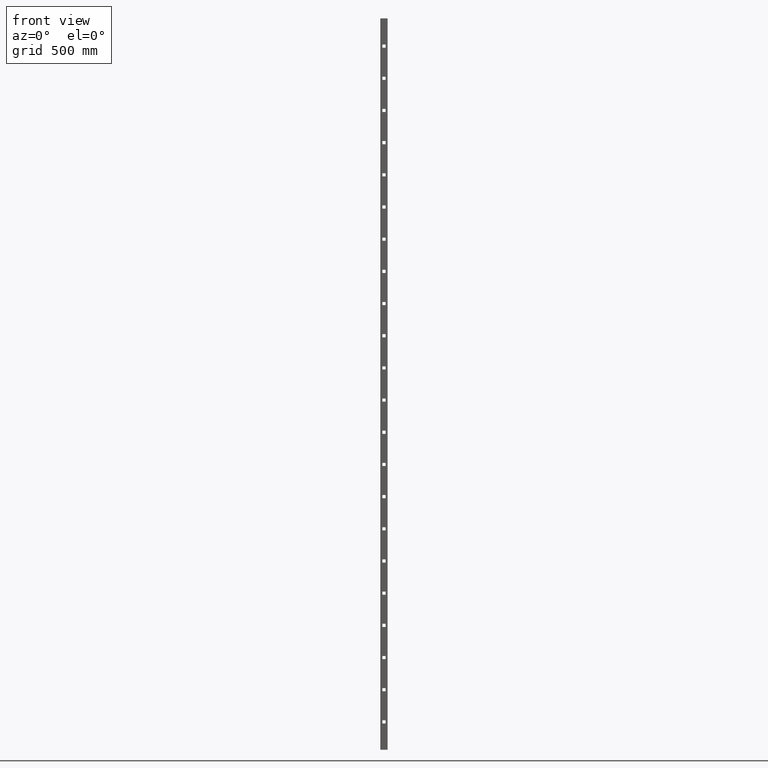
[diagram: clean part render]
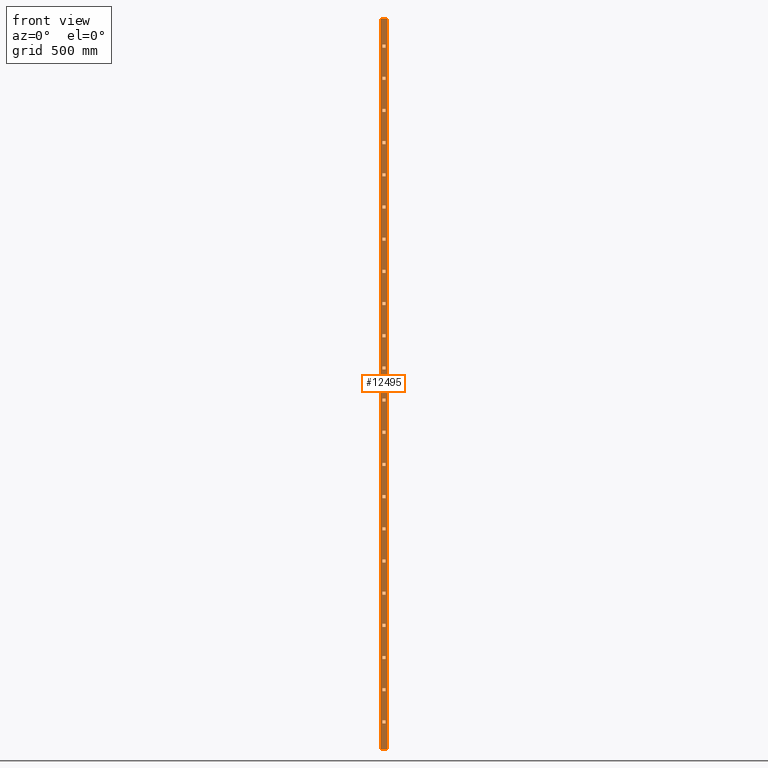
[diagram: same view with one face highlighted and labeled with its STEP entity id]
A machine part, front view. The second image highlights one B-rep face of the part: STEP entity #12495.
In plain terms, the highlighted planar face has unit normal (0, 1, 0).
Its self-contained STEP definition (entity closure, byte-faithful):
#4 = VECTOR ( 'NONE', #3863, 1000.000000000000000 ) ;
#28 = VECTOR ( 'NONE', #7644, 1000.000000000000000 ) ;
#47 = LINE ( 'NONE', #4747, #12181 ) ;
#49 = FACE_BOUND ( 'NONE', #16040, .T. ) ;
#58 = CARTESIAN_POINT ( 'NONE',  ( -6.499999999995550226, -10.00000000000000178, 1128.499999999999773 ) ) ;
#81 = EDGE_CURVE ( 'NONE', #14241, #19989, #8979, .T. ) ;
#96 = DIRECTION ( 'NONE',  ( -7.439294906592903578E-14, 0.000000000000000000, 1.000000000000000000 ) ) ;
#124 = ORIENTED_EDGE ( 'NONE', *, *, #81, .T. ) ;
#131 = ORIENTED_EDGE ( 'NONE', *, *, #16156, .T. ) ;
#146 = ORIENTED_EDGE ( 'NONE', *, *, #3233, .T. ) ;
#178 = DIRECTION ( 'NONE',  ( 1.000000000000000000, -0.000000000000000000, 0.000000000000000000 ) ) ;
#208 = VECTOR ( 'NONE', #18803, 1000.000000000000000 ) ;
#233 = VECTOR ( 'NONE', #20209, 1000.000000000000000 ) ;
#286 = LINE ( 'NONE', #13139, #11907 ) ;
#338 = CARTESIAN_POINT ( 'NONE',  ( 6.500000000004812151, -10.00000000000000178, 1260.500000000000000 ) ) ;
#350 = VERTEX_POINT ( 'NONE', #7926 ) ;
#365 = DIRECTION ( 'NONE',  ( 1.000000000000000000, -0.000000000000000000, 0.000000000000000000 ) ) ;
#407 = EDGE_CURVE ( 'NONE', #10597, #7128, #14400, .T. ) ;
#472 = CARTESIAN_POINT ( 'NONE',  ( 6.499999999989354293, -10.00000000000000178, -1392.500000000112095 ) ) ;
#487 = CARTESIAN_POINT ( 'NONE',  ( 6.500000000185815807, -10.00000000000000178, 1499.999999999998636 ) ) ;
#512 = CARTESIAN_POINT ( 'NONE',  ( 6.499999999996774136, -10.00000000000000178, 468.4999999999664055 ) ) ;
#519 = VERTEX_POINT ( 'NONE', #13598 ) ;
#527 = LINE ( 'NONE', #16030, #6981 ) ;
#547 = CARTESIAN_POINT ( 'NONE',  ( 6.499999999995390354, -10.00000000000000178, 72.49999999994938094 ) ) ;
#550 = VERTEX_POINT ( 'NONE', #16961 ) ;
#552 = DIRECTION ( 'NONE',  ( -1.000000000000000000, 0.000000000000000000, 0.000000000000000000 ) ) ;
#568 = LINE ( 'NONE', #1321, #3773 ) ;
#598 = CARTESIAN_POINT ( 'NONE',  ( -6.499999999997273292, -10.00000000000000178, 1500.000000000000000 ) ) ;
#636 = VERTEX_POINT ( 'NONE', #1667 ) ;
#643 = DIRECTION ( 'NONE',  ( -1.000000000000000000, 0.000000000000000000, 0.000000000000000000 ) ) ;
#701 = ORIENTED_EDGE ( 'NONE', *, *, #17012, .T. ) ;
#734 = CARTESIAN_POINT ( 'NONE',  ( -6.500000000121085364, -10.00000000000000178, 1500.000000000000455 ) ) ;
#738 = DIRECTION ( 'NONE',  ( -7.439294906592903578E-14, 0.000000000000000000, -1.000000000000000000 ) ) ;
#769 = FACE_BOUND ( 'NONE', #5850, .T. ) ;
#774 = EDGE_CURVE ( 'NONE', #5369, #7263, #5495, .T. ) ;
#808 = EDGE_CURVE ( 'NONE', #19989, #20088, #527, .T. ) ;
#833 = VERTEX_POINT ( 'NONE', #18122 ) ;
#839 = CARTESIAN_POINT ( 'NONE',  ( 11.99999999999998934, -9.999999999999998224, 1500.000000000000000 ) ) ;
#851 = VECTOR ( 'NONE', #13942, 1000.000000000000000 ) ;
#874 = DIRECTION ( 'NONE',  ( 1.334402673828323446E-16, -0.000000000000000000, 1.000000000000000000 ) ) ;
#880 = LINE ( 'NONE', #8807, #2863 ) ;
#888 = CARTESIAN_POINT ( 'NONE',  ( -12.00000000000001421, -10.00000000000000178, 732.4999999999997726 ) ) ;
#889 = ORIENTED_EDGE ( 'NONE', *, *, #3983, .T. ) ;
#938 = ORIENTED_EDGE ( 'NONE', *, *, #10245, .T. ) ;
#961 = EDGE_CURVE ( 'NONE', #519, #20193, #15372, .T. ) ;
#1021 = VECTOR ( 'NONE', #20056, 1000.000000000000000 ) ;
#1027 = CARTESIAN_POINT ( 'NONE',  ( -12.00000000000001421, -10.00000000000000178, 587.4999999999998863 ) ) ;
#1064 = LINE ( 'NONE', #3293, #3309 ) ;
#1066 = CARTESIAN_POINT ( 'NONE',  ( -6.500000000003180567, -10.00000000000000178, 191.4999999999551505 ) ) ;
#1090 = DIRECTION ( 'NONE',  ( 1.000000000000000000, -0.000000000000000000, 0.000000000000000000 ) ) ;
#1115 = ORIENTED_EDGE ( 'NONE', *, *, #12248, .T. ) ;
#1130 = DIRECTION ( 'NONE',  ( 1.000000000000000000, -0.000000000000000000, 0.000000000000000000 ) ) ;
#1153 = CARTESIAN_POINT ( 'NONE',  ( 11.99999999999998934, -9.999999999999998224, -1500.000000000000000 ) ) ;
#1156 = VERTEX_POINT ( 'NONE', #19408 ) ;
#1166 = CARTESIAN_POINT ( 'NONE',  ( 6.499999999989815258, -10.00000000000000178, -1260.500000000106866 ) ) ;
#1172 = DIRECTION ( 'NONE',  ( -1.000000000000000000, 0.000000000000000000, 0.000000000000000000 ) ) ;
#1190 = CARTESIAN_POINT ( 'NONE',  ( -6.499999999994630073, -10.00000000000000178, 1379.500000000000000 ) ) ;
#1193 = EDGE_CURVE ( 'NONE', #5348, #8339, #286, .T. ) ;
#1207 = EDGE_CURVE ( 'NONE', #636, #13223, #16631, .T. ) ;
#1245 = CARTESIAN_POINT ( 'NONE',  ( 6.499999999992580157, -10.00000000000000178, -468.5000000000727596 ) ) ;
#1259 = LINE ( 'NONE', #20078, #13398 ) ;
#1266 = CARTESIAN_POINT ( 'NONE',  ( 6.499999999995806910, -10.00000000000000178, 455.4999999999664624 ) ) ;
#1321 = CARTESIAN_POINT ( 'NONE',  ( -12.00000000000001421, -10.00000000000000178, -323.5000000000674163 ) ) ;
#1324 = LINE ( 'NONE', #17616, #15732 ) ;
#1348 = CARTESIAN_POINT ( 'NONE',  ( -6.500000000213612239, -10.00000000000000178, 1500.000000000000455 ) ) ;
#1370 = VECTOR ( 'NONE', #15465, 1000.000000000000000 ) ;
#1376 = LINE ( 'NONE', #3532, #17797 ) ;
#1397 = DIRECTION ( 'NONE',  ( -7.439294906592903578E-14, 0.000000000000000000, -1.000000000000000000 ) ) ;
#1538 = LINE ( 'NONE', #16006, #19411 ) ;
#1544 = CARTESIAN_POINT ( 'NONE',  ( 6.500000000110945031, -10.00000000000000178, 1499.999999999998636 ) ) ;
#1574 = CARTESIAN_POINT ( 'NONE',  ( -12.00000000000001421, -10.00000000000000178, 1247.500000000000000 ) ) ;
#1590 = DIRECTION ( 'NONE',  ( 1.000000000000000000, -0.000000000000000000, 0.000000000000000000 ) ) ;
#1591 = ORIENTED_EDGE ( 'NONE', *, *, #2769, .T. ) ;
#1631 = CARTESIAN_POINT ( 'NONE',  ( 6.500000000005286438, -10.00000000000000178, 1500.000000000000000 ) ) ;
#1645 = ORIENTED_EDGE ( 'NONE', *, *, #6984, .T. ) ;
#1667 = CARTESIAN_POINT ( 'NONE',  ( -6.500000000007328360, -10.00000000000000178, -996.5000000000951559 ) ) ;
#1695 = CARTESIAN_POINT ( 'NONE',  ( -6.500000000002258638, -10.00000000000000178, 455.4999999999664624 ) ) ;
#1732 = LINE ( 'NONE', #10159, #3912 ) ;
#1772 = CARTESIAN_POINT ( 'NONE',  ( -6.499999999996933120, -10.00000000000000178, 732.4999999999997726 ) ) ;
#1787 = FACE_BOUND ( 'NONE', #10370, .T. ) ;
#1808 = VECTOR ( 'NONE', #9726, 1000.000000000000000 ) ;
#1815 = EDGE_CURVE ( 'NONE', #6046, #14741, #7038, .T. ) ;
#1819 = CARTESIAN_POINT ( 'NONE',  ( -12.00000000000001421, -10.00000000000000178, -996.5000000000951559 ) ) ;
#1846 = EDGE_CURVE ( 'NONE', #16960, #833, #19665, .T. ) ;
#1850 = VECTOR ( 'NONE', #11111, 1000.000000000000000 ) ;
#1891 = EDGE_CURVE ( 'NONE', #5849, #18518, #19896, .T. ) ;
#1898 = DIRECTION ( 'NONE',  ( -1.334402673828323446E-16, 0.000000000000000000, -1.000000000000000000 ) ) ;
#1908 = VERTEX_POINT ( 'NONE', #1695 ) ;
#1951 = DIRECTION ( 'NONE',  ( 1.000000000000000000, 0.000000000000000000, 0.000000000000000000 ) ) ;
#1952 = VERTEX_POINT ( 'NONE', #15098 ) ;
#1982 = VECTOR ( 'NONE', #874, 1000.000000000000000 ) ;
#1986 = EDGE_LOOP ( 'NONE', ( #6837, #19167, #16666, #18106 ) ) ;
#2140 = ORIENTED_EDGE ( 'NONE', *, *, #15364, .T. ) ;
#2262 = FACE_BOUND ( 'NONE', #12992, .T. ) ;
#2292 = DIRECTION ( 'NONE',  ( 1.000000000000000000, -0.000000000000000000, 0.000000000000000000 ) ) ;
#2358 = ORIENTED_EDGE ( 'NONE', *, *, #15769, .T. ) ;
#2362 = VECTOR ( 'NONE', #18880, 1000.000000000000000 ) ;
#2370 = CARTESIAN_POINT ( 'NONE',  ( 6.500000000139023015, -10.00000000000000178, 1499.999999999998636 ) ) ;
#2466 = CARTESIAN_POINT ( 'NONE',  ( 6.499999999992625455, -10.00000000000000178, -719.5000000000841283 ) ) ;
#2475 = LINE ( 'NONE', #888, #14649 ) ;
#2489 = EDGE_CURVE ( 'NONE', #550, #10597, #9269, .T. ) ;
#2491 = CARTESIAN_POINT ( 'NONE',  ( 6.499999999990782484, -10.00000000000000178, -1247.500000000106866 ) ) ;
#2527 = CARTESIAN_POINT ( 'NONE',  ( 6.500000000002967404, -10.00000000000000178, 732.4999999999997726 ) ) ;
#2579 = PLANE ( 'NONE',  #12465 ) ;
#2582 = CARTESIAN_POINT ( 'NONE',  ( 6.500000000204536832, -10.00000000000000178, 1499.999999999998636 ) ) ;
#2583 = VERTEX_POINT ( 'NONE', #13819 ) ;
#2664 = VERTEX_POINT ( 'NONE', #20140 ) ;
#2668 = VECTOR ( 'NONE', #8320, 1000.000000000000000 ) ;
#2676 = EDGE_CURVE ( 'NONE', #4843, #3513, #8754, .T. ) ;
#2724 = EDGE_LOOP ( 'NONE', ( #14763, #9585, #10045, #14726 ) ) ;
#2740 = FACE_BOUND ( 'NONE', #4753, .T. ) ;
#2769 = EDGE_CURVE ( 'NONE', #16162, #5849, #7533, .T. ) ;
#2790 = CARTESIAN_POINT ( 'NONE',  ( 6.499999999991704414, -10.00000000000000178, -983.5000000000954969 ) ) ;
#2795 = EDGE_CURVE ( 'NONE', #10769, #19556, #10257, .T. ) ;
#2818 = VERTEX_POINT ( 'NONE', #6196 ) ;
#2830 = VECTOR ( 'NONE', #16767, 1000.000000000000000 ) ;
#2863 = VECTOR ( 'NONE', #20091, 1000.000000000000000 ) ;
#2916 = VECTOR ( 'NONE', #1172, 1000.000000000000000 ) ;
#2928 = CARTESIAN_POINT ( 'NONE',  ( -6.500000000004562573, -10.00000000000000178, -204.5000000000616183 ) ) ;
#3017 = ORIENTED_EDGE ( 'NONE', *, *, #3649, .T. ) ;
#3018 = DIRECTION ( 'NONE',  ( -1.000000000000000000, 0.000000000000000000, 0.000000000000000000 ) ) ;
#3035 = LINE ( 'NONE', #13717, #20409 ) ;
#3052 = CARTESIAN_POINT ( 'NONE',  ( 6.499999999994423128, -10.00000000000000178, 59.49999999994948041 ) ) ;
#3057 = CARTESIAN_POINT ( 'NONE',  ( -6.500000000162208025, -10.00000000000000178, 1500.000000000000455 ) ) ;
#3102 = ORIENTED_EDGE ( 'NONE', *, *, #10043, .T. ) ;
#3122 = LINE ( 'NONE', #6118, #17567 ) ;
#3158 = CARTESIAN_POINT ( 'NONE',  ( 6.499999999994469313, -10.00000000000000178, -191.5000000000617320 ) ) ;
#3162 = LINE ( 'NONE', #17276, #16554 ) ;
#3183 = EDGE_CURVE ( 'NONE', #11286, #11969, #18434, .T. ) ;
#3205 = VECTOR ( 'NONE', #552, 1000.000000000000000 ) ;
#3233 = EDGE_CURVE ( 'NONE', #5688, #5348, #18675, .T. ) ;
#3234 = CARTESIAN_POINT ( 'NONE',  ( 6.500000000002505551, -10.00000000000000178, 587.4999999999998863 ) ) ;
#3293 = CARTESIAN_POINT ( 'NONE',  ( -12.00000000000001421, -10.00000000000000178, 1379.500000000000000 ) ) ;
#3309 = VECTOR ( 'NONE', #16125, 1000.000000000000000 ) ;
#3337 = VERTEX_POINT ( 'NONE', #3234 ) ;
#3400 = LINE ( 'NONE', #8272, #15779 ) ;
#3407 = VERTEX_POINT ( 'NONE', #472 ) ;
#3422 = EDGE_CURVE ( 'NONE', #2818, #19477, #20377, .T. ) ;
#3463 = DIRECTION ( 'NONE',  ( 1.334402673828323446E-16, -0.000000000000000000, 1.000000000000000000 ) ) ;
#3509 = CARTESIAN_POINT ( 'NONE',  ( 6.500000000003888445, -10.00000000000000178, 983.4999999999998863 ) ) ;
#3513 = VERTEX_POINT ( 'NONE', #8653 ) ;
#3532 = CARTESIAN_POINT ( 'NONE',  ( -12.00000000000001421, -10.00000000000000178, -1128.500000000101181 ) ) ;
#3549 = VECTOR ( 'NONE', #1397, 1000.000000000000000 ) ;
#3608 = CARTESIAN_POINT ( 'NONE',  ( -12.00000000000001421, -10.00000000000000178, 204.4999999999550369 ) ) ;
#3649 = EDGE_CURVE ( 'NONE', #1908, #20396, #47, .T. ) ;
#3673 = CARTESIAN_POINT ( 'NONE',  ( -6.500000000005024425, -10.00000000000000178, -336.5000000000673026 ) ) ;
#3677 = CARTESIAN_POINT ( 'NONE',  ( -6.500000000006912693, -10.00000000000000178, -587.5000000000785576 ) ) ;
#3682 = EDGE_CURVE ( 'NONE', #15442, #6046, #14670, .T. ) ;
#3705 = ORIENTED_EDGE ( 'NONE', *, *, #8684, .T. ) ;
#3735 = CARTESIAN_POINT ( 'NONE',  ( -6.499999999994613198, -10.00000000000000178, 1500.000000000000000 ) ) ;
#3743 = CARTESIAN_POINT ( 'NONE',  ( 6.499999999993086419, -10.00000000000000178, -587.5000000000785576 ) ) ;
#3752 = FACE_BOUND ( 'NONE', #8275, .T. ) ;
#3765 = ORIENTED_EDGE ( 'NONE', *, *, #12600, .T. ) ;
#3773 = VECTOR ( 'NONE', #14053, 1000.000000000000000 ) ;
#3823 = ORIENTED_EDGE ( 'NONE', *, *, #8825, .T. ) ;
#3863 = DIRECTION ( 'NONE',  ( 1.000000000000000000, 0.000000000000000000, 0.000000000000000000 ) ) ;
#3912 = VECTOR ( 'NONE', #643, 1000.000000000000000 ) ;
#3931 = DIRECTION ( 'NONE',  ( 1.000000000000000000, -0.000000000000000000, 0.000000000000000000 ) ) ;
#3940 = DIRECTION ( 'NONE',  ( 1.000000000000000000, -0.000000000000000000, 0.000000000000000000 ) ) ;
#3951 = CARTESIAN_POINT ( 'NONE',  ( 6.499999999995852207, -10.00000000000000178, 204.4999999999550369 ) ) ;
#3964 = CARTESIAN_POINT ( 'NONE',  ( -6.499999999996934008, -10.00000000000000178, 719.4999999999998863 ) ) ;
#3983 = EDGE_CURVE ( 'NONE', #7605, #7045, #2475, .T. ) ;
#4015 = VERTEX_POINT ( 'NONE', #5680 ) ;
#4046 = DIRECTION ( 'NONE',  ( -1.000000000000000000, 0.000000000000000000, 0.000000000000000000 ) ) ;
#4060 = CARTESIAN_POINT ( 'NONE',  ( -12.00000000000001421, -10.00000000000000178, 1500.000000000000000 ) ) ;
#4094 = LINE ( 'NONE', #19940, #2830 ) ;
#4147 = ORIENTED_EDGE ( 'NONE', *, *, #6855, .T. ) ;
#4172 = VECTOR ( 'NONE', #4273, 1000.000000000000000 ) ;
#4184 = EDGE_CURVE ( 'NONE', #18810, #5551, #1259, .T. ) ;
#4213 = LINE ( 'NONE', #6023, #4 ) ;
#4255 = CARTESIAN_POINT ( 'NONE',  ( -6.500000000203330686, -10.00000000000000178, 1500.000000000000455 ) ) ;
#4261 = VERTEX_POINT ( 'NONE', #19585 ) ;
#4267 = EDGE_CURVE ( 'NONE', #4261, #12627, #17910, .T. ) ;
#4273 = DIRECTION ( 'NONE',  ( -1.000000000000000000, 0.000000000000000000, 0.000000000000000000 ) ) ;
#4336 = DIRECTION ( 'NONE',  ( -7.439294906592903578E-14, 0.000000000000000000, 1.000000000000000000 ) ) ;
#4370 = CARTESIAN_POINT ( 'NONE',  ( -6.499999999994628297, -10.00000000000000178, 1392.499999999999773 ) ) ;
#4373 = ORIENTED_EDGE ( 'NONE', *, *, #2795, .T. ) ;
#4395 = LINE ( 'NONE', #9438, #208 ) ;
#4407 = LINE ( 'NONE', #5567, #8168 ) ;
#4458 = ORIENTED_EDGE ( 'NONE', *, *, #20451, .T. ) ;
#4462 = DIRECTION ( 'NONE',  ( -7.439294906592903578E-14, 0.000000000000000000, 1.000000000000000000 ) ) ;
#4504 = VECTOR ( 'NONE', #9686, 1000.000000000000000 ) ;
#4532 = CARTESIAN_POINT ( 'NONE',  ( -6.500000000008756551, -10.00000000000000178, -1115.500000000100954 ) ) ;
#4569 = CARTESIAN_POINT ( 'NONE',  ( -12.00000000000001421, -10.00000000000000178, 1260.500000000000000 ) ) ;
#4631 = CARTESIAN_POINT ( 'NONE',  ( -12.00000000000001421, -10.00000000000000178, -983.5000000000952696 ) ) ;
#4645 = VERTEX_POINT ( 'NONE', #9141 ) ;
#4679 = EDGE_CURVE ( 'NONE', #19556, #13965, #7206, .T. ) ;
#4747 = CARTESIAN_POINT ( 'NONE',  ( -6.500000000079961815, -10.00000000000000178, 1500.000000000000455 ) ) ;
#4753 = EDGE_LOOP ( 'NONE', ( #10008, #16238, #4458, #11686 ) ) ;
#4762 = LINE ( 'NONE', #4255, #1021 ) ;
#4772 = DIRECTION ( 'NONE',  ( -7.439294906592903578E-14, 0.000000000000000000, -1.000000000000000000 ) ) ;
#4843 = VERTEX_POINT ( 'NONE', #7456 ) ;
#4857 = ORIENTED_EDGE ( 'NONE', *, *, #4872, .T. ) ;
#4862 = LINE ( 'NONE', #14585, #11298 ) ;
#4872 = EDGE_CURVE ( 'NONE', #7686, #10355, #12888, .T. ) ;
#4874 = CARTESIAN_POINT ( 'NONE',  ( -6.500000000182769355, -10.00000000000000178, 1500.000000000000455 ) ) ;
#4882 = VERTEX_POINT ( 'NONE', #12345 ) ;
#4935 = CARTESIAN_POINT ( 'NONE',  ( -6.499999999996386002, -10.00000000000000178, 1500.000000000000000 ) ) ;
#4938 = LINE ( 'NONE', #9121, #6435 ) ;
#4956 = DIRECTION ( 'NONE',  ( 1.000000000000000000, -0.000000000000000000, 0.000000000000000000 ) ) ;
#5014 = FACE_BOUND ( 'NONE', #18533, .T. ) ;
#5027 = VERTEX_POINT ( 'NONE', #14502 ) ;
#5078 = LINE ( 'NONE', #3735, #13440 ) ;
#5101 = VECTOR ( 'NONE', #7460, 1000.000000000000000 ) ;
#5139 = VECTOR ( 'NONE', #11309, 1000.000000000000000 ) ;
#5149 = DIRECTION ( 'NONE',  ( -1.000000000000000000, 0.000000000000000000, 0.000000000000000000 ) ) ;
#5222 = VERTEX_POINT ( 'NONE', #17638 ) ;
#5348 = VERTEX_POINT ( 'NONE', #547 ) ;
#5368 = LINE ( 'NONE', #18512, #11778 ) ;
#5369 = VERTEX_POINT ( 'NONE', #7138 ) ;
#5463 = ORIENTED_EDGE ( 'NONE', *, *, #10626, .T. ) ;
#5495 = LINE ( 'NONE', #12757, #7478 ) ;
#5503 = CARTESIAN_POINT ( 'NONE',  ( 6.500000000005270451, -10.00000000000000178, 1379.500000000000000 ) ) ;
#5530 = VERTEX_POINT ( 'NONE', #14830 ) ;
#5551 = VERTEX_POINT ( 'NONE', #19749 ) ;
#5559 = VECTOR ( 'NONE', #10219, 1000.000000000000000 ) ;
#5567 = CARTESIAN_POINT ( 'NONE',  ( 6.500000000003069545, -10.00000000000000178, 1500.000000000000000 ) ) ;
#5616 = EDGE_CURVE ( 'NONE', #7376, #11286, #9422, .T. ) ;
#5638 = CARTESIAN_POINT ( 'NONE',  ( -6.500000000006867396, -10.00000000000000178, -864.5000000000893579 ) ) ;
#5643 = VERTEX_POINT ( 'NONE', #15437 ) ;
#5680 = CARTESIAN_POINT ( 'NONE',  ( 6.500000000003427481, -10.00000000000000178, 851.4999999999998863 ) ) ;
#5688 = VERTEX_POINT ( 'NONE', #15792 ) ;
#5704 = CARTESIAN_POINT ( 'NONE',  ( -6.500000000002719602, -10.00000000000000178, 323.4999999999608349 ) ) ;
#5711 = EDGE_CURVE ( 'NONE', #5551, #13843, #16830, .T. ) ;
#5740 = VERTEX_POINT ( 'NONE', #14416 ) ;
#5761 = ORIENTED_EDGE ( 'NONE', *, *, #14544, .T. ) ;
#5796 = VECTOR ( 'NONE', #178, 1000.000000000000000 ) ;
#5809 = ORIENTED_EDGE ( 'NONE', *, *, #14776, .T. ) ;
#5817 = VECTOR ( 'NONE', #1590, 1000.000000000000000 ) ;
#5849 = VERTEX_POINT ( 'NONE', #3677 ) ;
#5850 = EDGE_LOOP ( 'NONE', ( #3705, #12505, #7063, #19510 ) ) ;
#5864 = LINE ( 'NONE', #19296, #10102 ) ;
#5874 = EDGE_CURVE ( 'NONE', #17438, #3337, #13105, .T. ) ;
#5906 = VECTOR ( 'NONE', #17845, 1000.000000000000000 ) ;
#5934 = ORIENTED_EDGE ( 'NONE', *, *, #2489, .T. ) ;
#5938 = VECTOR ( 'NONE', #16026, 1000.000000000000000 ) ;
#5964 = ORIENTED_EDGE ( 'NONE', *, *, #1846, .T. ) ;
#5974 = VECTOR ( 'NONE', #14480, 1000.000000000000000 ) ;
#5994 = FACE_BOUND ( 'NONE', #14708, .T. ) ;
#5996 = CARTESIAN_POINT ( 'NONE',  ( 6.499999999991198152, -10.00000000000000178, -864.5000000000895852 ) ) ;
#6015 = FACE_BOUND ( 'NONE', #1986, .T. ) ;
#6023 = CARTESIAN_POINT ( 'NONE',  ( -12.00000000000001421, -10.00000000000000178, 1500.000000000000000 ) ) ;
#6041 = CARTESIAN_POINT ( 'NONE',  ( -12.00000000000001421, -10.00000000000000178, 455.4999999999664624 ) ) ;
#6046 = VERTEX_POINT ( 'NONE', #3673 ) ;
#6067 = DIRECTION ( 'NONE',  ( 1.000000000000000000, -0.000000000000000000, 0.000000000000000000 ) ) ;
#6091 = ORIENTED_EDGE ( 'NONE', *, *, #18896, .T. ) ;
#6103 = ORIENTED_EDGE ( 'NONE', *, *, #11816, .T. ) ;
#6107 = VERTEX_POINT ( 'NONE', #19138 ) ;
#6118 = CARTESIAN_POINT ( 'NONE',  ( 6.500000000092227559, -10.00000000000000178, 1499.999999999998636 ) ) ;
#6123 = LINE ( 'NONE', #1819, #12808 ) ;
#6158 = LINE ( 'NONE', #10633, #14839 ) ;
#6169 = EDGE_CURVE ( 'NONE', #3513, #16527, #6158, .T. ) ;
#6183 = CARTESIAN_POINT ( 'NONE',  ( 6.499999999991242561, -10.00000000000000178, -1115.500000000100954 ) ) ;
#6196 = CARTESIAN_POINT ( 'NONE',  ( -6.500000000004102496, -10.00000000000000178, -72.50000000005596235 ) ) ;
#6250 = EDGE_CURVE ( 'NONE', #13470, #5740, #4938, .T. ) ;
#6257 = EDGE_LOOP ( 'NONE', ( #4373, #16464, #1115, #3823 ) ) ;
#6271 = ORIENTED_EDGE ( 'NONE', *, *, #4184, .T. ) ;
#6339 = ORIENTED_EDGE ( 'NONE', *, *, #3183, .T. ) ;
#6435 = VECTOR ( 'NONE', #6067, 1000.000000000000000 ) ;
#6438 = LINE ( 'NONE', #16552, #8420 ) ;
#6491 = CARTESIAN_POINT ( 'NONE',  ( 6.499999999996312283, -10.00000000000000178, 336.4999999999607212 ) ) ;
#6498 = ORIENTED_EDGE ( 'NONE', *, *, #11290, .T. ) ;
#6506 = FACE_BOUND ( 'NONE', #16755, .T. ) ;
#6557 = ORIENTED_EDGE ( 'NONE', *, *, #14787, .T. ) ;
#6569 = DIRECTION ( 'NONE',  ( -1.000000000000000000, 0.000000000000000000, 0.000000000000000000 ) ) ;
#6584 = CARTESIAN_POINT ( 'NONE',  ( -12.00000000000001421, -10.00000000000000178, -1115.500000000101181 ) ) ;
#6595 = LINE ( 'NONE', #8235, #17533 ) ;
#6663 = EDGE_CURVE ( 'NONE', #7045, #17110, #4407, .T. ) ;
#6691 = EDGE_CURVE ( 'NONE', #9491, #1908, #20281, .T. ) ;
#6734 = DIRECTION ( 'NONE',  ( 1.334402673828323446E-16, -0.000000000000000000, 1.000000000000000000 ) ) ;
#6750 = EDGE_LOOP ( 'NONE', ( #6339, #15621, #9526, #7770 ) ) ;
#6761 = CARTESIAN_POINT ( 'NONE',  ( 6.499999999990321520, -10.00000000000000178, -1379.500000000112323 ) ) ;
#6806 = CARTESIAN_POINT ( 'NONE',  ( -12.00000000000001421, -10.00000000000000178, -59.50000000005606182 ) ) ;
#6814 = EDGE_CURVE ( 'NONE', #11914, #5222, #3162, .T. ) ;
#6837 = ORIENTED_EDGE ( 'NONE', *, *, #6922, .T. ) ;
#6855 = EDGE_CURVE ( 'NONE', #9780, #9491, #4395, .T. ) ;
#6897 = VERTEX_POINT ( 'NONE', #6183 ) ;
#6922 = EDGE_CURVE ( 'NONE', #2583, #1952, #12316, .T. ) ;
#6925 = LINE ( 'NONE', #10385, #1982 ) ;
#6960 = CARTESIAN_POINT ( 'NONE',  ( -6.499999999996012079, -10.00000000000000178, 983.4999999999998863 ) ) ;
#6981 = VECTOR ( 'NONE', #3940, 1000.000000000000000 ) ;
#6984 = EDGE_CURVE ( 'NONE', #3407, #12175, #13559, .T. ) ;
#7038 = LINE ( 'NONE', #17290, #9014 ) ;
#7045 = VERTEX_POINT ( 'NONE', #2527 ) ;
#7063 = ORIENTED_EDGE ( 'NONE', *, *, #9346, .T. ) ;
#7095 = EDGE_CURVE ( 'NONE', #4015, #5530, #16812, .T. ) ;
#7128 = VERTEX_POINT ( 'NONE', #1153 ) ;
#7138 = CARTESIAN_POINT ( 'NONE',  ( -6.499999999996471267, -10.00000000000000178, 864.4999999999997726 ) ) ;
#7206 = LINE ( 'NONE', #12098, #16391 ) ;
#7235 = DIRECTION ( 'NONE',  ( -1.000000000000000000, 0.000000000000000000, 0.000000000000000000 ) ) ;
#7240 = ORIENTED_EDGE ( 'NONE', *, *, #3682, .T. ) ;
#7260 = VERTEX_POINT ( 'NONE', #18850 ) ;
#7261 = EDGE_CURVE ( 'NONE', #8296, #6107, #19768, .T. ) ;
#7263 = VERTEX_POINT ( 'NONE', #17475 ) ;
#7310 = LINE ( 'NONE', #1574, #8068 ) ;
#7325 = EDGE_CURVE ( 'NONE', #9560, #6897, #18546, .T. ) ;
#7348 = CARTESIAN_POINT ( 'NONE',  ( -12.00000000000001421, -10.00000000000000178, -600.5000000000784439 ) ) ;
#7362 = LINE ( 'NONE', #16098, #5139 ) ;
#7376 = VERTEX_POINT ( 'NONE', #7457 ) ;
#7401 = CARTESIAN_POINT ( 'NONE',  ( 11.99999999999998934, -9.999999999999998224, 1500.000000000000000 ) ) ;
#7456 = CARTESIAN_POINT ( 'NONE',  ( -6.500000000008250289, -10.00000000000000178, -1260.500000000106866 ) ) ;
#7457 = CARTESIAN_POINT ( 'NONE',  ( 6.499999999994884980, -10.00000000000000178, 191.4999999999551505 ) ) ;
#7460 = DIRECTION ( 'NONE',  ( -7.439294906592903578E-14, 0.000000000000000000, -1.000000000000000000 ) ) ;
#7466 = DIRECTION ( 'NONE',  ( -7.439294906592903578E-14, 0.000000000000000000, -1.000000000000000000 ) ) ;
#7478 = VECTOR ( 'NONE', #14492, 1000.000000000000000 ) ;
#7522 = VERTEX_POINT ( 'NONE', #2928 ) ;
#7533 = LINE ( 'NONE', #3057, #4504 ) ;
#7550 = CARTESIAN_POINT ( 'NONE',  ( 6.500000000003890221, -10.00000000000000178, 996.4999999999998863 ) ) ;
#7568 = ORIENTED_EDGE ( 'NONE', *, *, #6250, .T. ) ;
#7605 = VERTEX_POINT ( 'NONE', #1772 ) ;
#7612 = CARTESIAN_POINT ( 'NONE',  ( -12.00000000000001421, -10.00000000000000178, 1500.000000000000000 ) ) ;
#7644 = DIRECTION ( 'NONE',  ( 1.000000000000000000, -0.000000000000000000, 0.000000000000000000 ) ) ;
#7664 = LINE ( 'NONE', #4631, #9398 ) ;
#7686 = VERTEX_POINT ( 'NONE', #14845 ) ;
#7768 = DIRECTION ( 'NONE',  ( -7.439294906592903578E-14, 0.000000000000000000, -1.000000000000000000 ) ) ;
#7770 = ORIENTED_EDGE ( 'NONE', *, *, #5616, .T. ) ;
#7775 = DIRECTION ( 'NONE',  ( -1.334402673828323446E-16, 0.000000000000000000, -1.000000000000000000 ) ) ;
#7833 = ORIENTED_EDGE ( 'NONE', *, *, #8300, .T. ) ;
#7842 = VERTEX_POINT ( 'NONE', #18195 ) ;
#7926 = CARTESIAN_POINT ( 'NONE',  ( 6.499999999991658228, -10.00000000000000178, -732.5000000000841283 ) ) ;
#8006 = EDGE_CURVE ( 'NONE', #10036, #7376, #3122, .T. ) ;
#8018 = FACE_BOUND ( 'NONE', #8694, .T. ) ;
#8068 = VECTOR ( 'NONE', #15915, 1000.000000000000000 ) ;
#8081 = ORIENTED_EDGE ( 'NONE', *, *, #961, .T. ) ;
#8089 = CARTESIAN_POINT ( 'NONE',  ( -12.00000000000001421, -10.00000000000000178, -587.5000000000785576 ) ) ;
#8090 = EDGE_CURVE ( 'NONE', #16527, #16999, #7362, .T. ) ;
#8122 = EDGE_CURVE ( 'NONE', #8251, #636, #6123, .T. ) ;
#8133 = CARTESIAN_POINT ( 'NONE',  ( -6.500000000007834622, -10.00000000000000178, -851.5000000000895852 ) ) ;
#8155 = LINE ( 'NONE', #487, #5906 ) ;
#8160 = EDGE_CURVE ( 'NONE', #18083, #7605, #3400, .T. ) ;
#8168 = VECTOR ( 'NONE', #20092, 1000.000000000000000 ) ;
#8180 = DIRECTION ( 'NONE',  ( 1.000000000000000000, -0.000000000000000000, 0.000000000000000000 ) ) ;
#8235 = CARTESIAN_POINT ( 'NONE',  ( -12.00000000000001421, -10.00000000000000178, -1260.500000000106866 ) ) ;
#8249 = EDGE_CURVE ( 'NONE', #12175, #13664, #8369, .T. ) ;
#8251 = VERTEX_POINT ( 'NONE', #20103 ) ;
#8268 = CARTESIAN_POINT ( 'NONE',  ( -6.500000000008295586, -10.00000000000000178, -983.5000000000954969 ) ) ;
#8272 = CARTESIAN_POINT ( 'NONE',  ( -6.499999999996830091, -10.00000000000000178, 1500.000000000000000 ) ) ;
#8275 = EDGE_LOOP ( 'NONE', ( #5761, #6271, #10483, #9045 ) ) ;
#8296 = VERTEX_POINT ( 'NONE', #1245 ) ;
#8300 = EDGE_CURVE ( 'NONE', #20396, #9780, #18263, .T. ) ;
#8320 = DIRECTION ( 'NONE',  ( -7.439294906592903578E-14, 0.000000000000000000, -1.000000000000000000 ) ) ;
#8339 = VERTEX_POINT ( 'NONE', #3052 ) ;
#8345 = CARTESIAN_POINT ( 'NONE',  ( -12.00000000000001421, -10.00000000000000178, -72.50000000005596235 ) ) ;
#8369 = LINE ( 'NONE', #12202, #1370 ) ;
#8380 = VECTOR ( 'NONE', #8180, 1000.000000000000000 ) ;
#8417 = VECTOR ( 'NONE', #14916, 1000.000000000000000 ) ;
#8420 = VECTOR ( 'NONE', #10447, 1000.000000000000000 ) ;
#8421 = EDGE_CURVE ( 'NONE', #20088, #20243, #5864, .T. ) ;
#8431 = LINE ( 'NONE', #6806, #18111 ) ;
#8513 = EDGE_CURVE ( 'NONE', #350, #17981, #9333, .T. ) ;
#8556 = LINE ( 'NONE', #10932, #5817 ) ;
#8589 = CARTESIAN_POINT ( 'NONE',  ( -6.500000000009677592, -10.00000000000000178, -1379.500000000112323 ) ) ;
#8653 = CARTESIAN_POINT ( 'NONE',  ( -6.500000000009217516, -10.00000000000000178, -1247.500000000106866 ) ) ;
#8654 = LINE ( 'NONE', #17101, #233 ) ;
#8684 = EDGE_CURVE ( 'NONE', #17981, #5643, #19731, .T. ) ;
#8694 = EDGE_LOOP ( 'NONE', ( #11737, #146, #18731, #18833 ) ) ;
#8754 = LINE ( 'NONE', #1348, #18696 ) ;
#8762 = EDGE_LOOP ( 'NONE', ( #19381, #15544, #15491, #7240 ) ) ;
#8807 = CARTESIAN_POINT ( 'NONE',  ( 6.500000000003513634, -10.00000000000000178, 1500.000000000000000 ) ) ;
#8825 = EDGE_CURVE ( 'NONE', #5027, #10769, #4094, .T. ) ;
#8884 = ORIENTED_EDGE ( 'NONE', *, *, #5874, .T. ) ;
#8970 = DIRECTION ( 'NONE',  ( 1.334402673828323446E-16, -0.000000000000000000, 1.000000000000000000 ) ) ;
#8979 = LINE ( 'NONE', #13842, #19171 ) ;
#9014 = VECTOR ( 'NONE', #15754, 1000.000000000000000 ) ;
#9045 = ORIENTED_EDGE ( 'NONE', *, *, #18856, .T. ) ;
#9121 = CARTESIAN_POINT ( 'NONE',  ( -12.00000000000001421, -10.00000000000000178, 1128.499999999999773 ) ) ;
#9129 = DIRECTION ( 'NONE',  ( 0.000000000000000000, 1.000000000000000000, 0.000000000000000000 ) ) ;
#9141 = CARTESIAN_POINT ( 'NONE',  ( 6.499999999994008348, -10.00000000000000178, -323.5000000000674163 ) ) ;
#9165 = LINE ( 'NONE', #3608, #20308 ) ;
#9183 = VECTOR ( 'NONE', #13936, 1000.000000000000000 ) ;
#9185 = VECTOR ( 'NONE', #20482, 1000.000000000000000 ) ;
#9217 = CARTESIAN_POINT ( 'NONE',  ( 6.500000000167097447, -10.00000000000000178, 1499.999999999998636 ) ) ;
#9269 = LINE ( 'NONE', #4060, #19672 ) ;
#9330 = DIRECTION ( 'NONE',  ( -1.334402673828323446E-16, 0.000000000000000000, -1.000000000000000000 ) ) ;
#9333 = LINE ( 'NONE', #16300, #17022 ) ;
#9346 = EDGE_CURVE ( 'NONE', #16893, #350, #10781, .T. ) ;
#9360 = ORIENTED_EDGE ( 'NONE', *, *, #7325, .T. ) ;
#9398 = VECTOR ( 'NONE', #20162, 1000.000000000000000 ) ;
#9417 = CARTESIAN_POINT ( 'NONE',  ( -6.499999999996010303, -10.00000000000000178, 996.4999999999998863 ) ) ;
#9422 = LINE ( 'NONE', #18527, #10642 ) ;
#9438 = CARTESIAN_POINT ( 'NONE',  ( 6.500000000073509199, -10.00000000000000178, 1499.999999999998636 ) ) ;
#9491 = VERTEX_POINT ( 'NONE', #1266 ) ;
#9524 = CARTESIAN_POINT ( 'NONE',  ( -6.500000000003686829, -10.00000000000000178, 336.4999999999607212 ) ) ;
#9526 = ORIENTED_EDGE ( 'NONE', *, *, #8006, .T. ) ;
#9527 = EDGE_CURVE ( 'NONE', #7522, #519, #14738, .T. ) ;
#9560 = VERTEX_POINT ( 'NONE', #4532 ) ;
#9585 = ORIENTED_EDGE ( 'NONE', *, *, #774, .T. ) ;
#9686 = DIRECTION ( 'NONE',  ( -7.439294906592903578E-14, 0.000000000000000000, 1.000000000000000000 ) ) ;
#9726 = DIRECTION ( 'NONE',  ( 1.000000000000000000, -0.000000000000000000, 0.000000000000000000 ) ) ;
#9739 = VECTOR ( 'NONE', #1951, 1000.000000000000000 ) ;
#9755 = FACE_OUTER_BOUND ( 'NONE', #15653, .T. ) ;
#9774 = VECTOR ( 'NONE', #19006, 1000.000000000000000 ) ;
#9780 = VERTEX_POINT ( 'NONE', #512 ) ;
#9820 = DIRECTION ( 'NONE',  ( 1.334402673828323446E-16, -0.000000000000000000, 1.000000000000000000 ) ) ;
#9823 = DIRECTION ( 'NONE',  ( -1.000000000000000000, 0.000000000000000000, 0.000000000000000000 ) ) ;
#9841 = VERTEX_POINT ( 'NONE', #5503 ) ;
#9879 = ORIENTED_EDGE ( 'NONE', *, *, #11743, .T. ) ;
#9932 = CARTESIAN_POINT ( 'NONE',  ( -12.00000000000001421, -10.00000000000000178, -864.5000000000893579 ) ) ;
#9977 = EDGE_CURVE ( 'NONE', #11155, #7128, #11492, .T. ) ;
#9980 = ORIENTED_EDGE ( 'NONE', *, *, #8421, .T. ) ;
#9994 = VECTOR ( 'NONE', #6569, 1000.000000000000000 ) ;
#9995 = CARTESIAN_POINT ( 'NONE',  ( -12.00000000000001421, -10.00000000000000178, -1500.000000000000000 ) ) ;
#10008 = ORIENTED_EDGE ( 'NONE', *, *, #10298, .T. ) ;
#10035 = LINE ( 'NONE', #19236, #5796 ) ;
#10036 = VERTEX_POINT ( 'NONE', #3951 ) ;
#10043 = EDGE_CURVE ( 'NONE', #11208, #8251, #19916, .T. ) ;
#10045 = ORIENTED_EDGE ( 'NONE', *, *, #18593, .T. ) ;
#10071 = DIRECTION ( 'NONE',  ( -1.000000000000000000, 0.000000000000000000, 0.000000000000000000 ) ) ;
#10102 = VECTOR ( 'NONE', #1898, 1000.000000000000000 ) ;
#10158 = LINE ( 'NONE', #7348, #4172 ) ;
#10159 = CARTESIAN_POINT ( 'NONE',  ( -12.00000000000001421, -10.00000000000000178, 719.4999999999998863 ) ) ;
#10198 = ORIENTED_EDGE ( 'NONE', *, *, #16105, .T. ) ;
#10219 = DIRECTION ( 'NONE',  ( -0.000000000000000000, -0.000000000000000000, -1.000000000000000000 ) ) ;
#10220 = FACE_BOUND ( 'NONE', #2724, .T. ) ;
#10245 = EDGE_CURVE ( 'NONE', #12627, #17438, #10035, .T. ) ;
#10257 = LINE ( 'NONE', #11175, #16660 ) ;
#10298 = EDGE_CURVE ( 'NONE', #18191, #12983, #5078, .T. ) ;
#10355 = VERTEX_POINT ( 'NONE', #16436 ) ;
#10370 = EDGE_LOOP ( 'NONE', ( #12420, #5463, #6498, #1645 ) ) ;
#10385 = CARTESIAN_POINT ( 'NONE',  ( -6.499999999995500488, -10.00000000000000178, 1500.000000000000000 ) ) ;
#10396 = VECTOR ( 'NONE', #3463, 1000.000000000000000 ) ;
#10419 = ORIENTED_EDGE ( 'NONE', *, *, #14988, .T. ) ;
#10447 = DIRECTION ( 'NONE',  ( -1.334402673828323446E-16, 0.000000000000000000, -1.000000000000000000 ) ) ;
#10461 = DIRECTION ( 'NONE',  ( -1.000000000000000000, 0.000000000000000000, 0.000000000000000000 ) ) ;
#10483 = ORIENTED_EDGE ( 'NONE', *, *, #5711, .T. ) ;
#10509 = VECTOR ( 'NONE', #7466, 1000.000000000000000 ) ;
#10593 = VERTEX_POINT ( 'NONE', #12513 ) ;
#10597 = VERTEX_POINT ( 'NONE', #17262 ) ;
#10626 = EDGE_CURVE ( 'NONE', #13664, #14089, #8556, .T. ) ;
#10627 = LINE ( 'NONE', #17473, #2668 ) ;
#10633 = CARTESIAN_POINT ( 'NONE',  ( -12.00000000000001421, -10.00000000000000178, -1247.500000000107093 ) ) ;
#10640 = ORIENTED_EDGE ( 'NONE', *, *, #15258, .T. ) ;
#10642 = VECTOR ( 'NONE', #13690, 1000.000000000000000 ) ;
#10650 = CARTESIAN_POINT ( 'NONE',  ( 6.500000000129666056, -10.00000000000000178, 1499.999999999998636 ) ) ;
#10695 = FACE_BOUND ( 'NONE', #8762, .T. ) ;
#10769 = VERTEX_POINT ( 'NONE', #5704 ) ;
#10781 = LINE ( 'NONE', #13741, #5101 ) ;
#10899 = LINE ( 'NONE', #15694, #9185 ) ;
#10932 = CARTESIAN_POINT ( 'NONE',  ( -12.00000000000001421, -10.00000000000000178, -1379.500000000112095 ) ) ;
#11017 = CARTESIAN_POINT ( 'NONE',  ( 6.500000000002966516, -10.00000000000000178, 719.4999999999998863 ) ) ;
#11102 = ORIENTED_EDGE ( 'NONE', *, *, #6169, .T. ) ;
#11111 = DIRECTION ( 'NONE',  ( -7.439294906592903578E-14, 0.000000000000000000, -1.000000000000000000 ) ) ;
#11155 = VERTEX_POINT ( 'NONE', #7401 ) ;
#11175 = CARTESIAN_POINT ( 'NONE',  ( -6.500000000090243368, -10.00000000000000178, 1500.000000000000455 ) ) ;
#11208 = VERTEX_POINT ( 'NONE', #2790 ) ;
#11286 = VERTEX_POINT ( 'NONE', #1066 ) ;
#11290 = EDGE_CURVE ( 'NONE', #14089, #3407, #16458, .T. ) ;
#11298 = VECTOR ( 'NONE', #16741, 1000.000000000000000 ) ;
#11309 = DIRECTION ( 'NONE',  ( -7.439294906592903578E-14, 0.000000000000000000, -1.000000000000000000 ) ) ;
#11426 = VECTOR ( 'NONE', #2292, 1000.000000000000000 ) ;
#11434 = EDGE_LOOP ( 'NONE', ( #1591, #19057, #10640, #10419 ) ) ;
#11456 = VECTOR ( 'NONE', #13395, 1000.000000000000000 ) ;
#11468 = EDGE_CURVE ( 'NONE', #9841, #18191, #1064, .T. ) ;
#11492 = LINE ( 'NONE', #839, #5559 ) ;
#11495 = LINE ( 'NONE', #1631, #18961 ) ;
#11502 = DIRECTION ( 'NONE',  ( 1.000000000000000000, -0.000000000000000000, 0.000000000000000000 ) ) ;
#11683 = FACE_BOUND ( 'NONE', #18872, .T. ) ;
#11686 = ORIENTED_EDGE ( 'NONE', *, *, #11468, .T. ) ;
#11694 = VERTEX_POINT ( 'NONE', #5638 ) ;
#11737 = ORIENTED_EDGE ( 'NONE', *, *, #13937, .T. ) ;
#11743 = EDGE_CURVE ( 'NONE', #20243, #14241, #3035, .T. ) ;
#11778 = VECTOR ( 'NONE', #12362, 1000.000000000000000 ) ;
#11781 = CARTESIAN_POINT ( 'NONE',  ( -12.00000000000001421, -10.00000000000000178, -191.5000000000617320 ) ) ;
#11816 = EDGE_CURVE ( 'NONE', #6107, #11914, #12972, .T. ) ;
#11821 = ORIENTED_EDGE ( 'NONE', *, *, #808, .T. ) ;
#11846 = LINE ( 'NONE', #1027, #12359 ) ;
#11862 = VECTOR ( 'NONE', #7775, 1000.000000000000000 ) ;
#11863 = EDGE_CURVE ( 'NONE', #14741, #4645, #568, .T. ) ;
#11907 = VECTOR ( 'NONE', #738, 1000.000000000000000 ) ;
#11914 = VERTEX_POINT ( 'NONE', #18954 ) ;
#11969 = VERTEX_POINT ( 'NONE', #16032 ) ;
#12098 = CARTESIAN_POINT ( 'NONE',  ( -12.00000000000001421, -10.00000000000000178, 336.4999999999607212 ) ) ;
#12100 = CARTESIAN_POINT ( 'NONE',  ( 6.500000000002507328, -10.00000000000000178, 600.4999999999997726 ) ) ;
#12175 = VERTEX_POINT ( 'NONE', #17479 ) ;
#12181 = VECTOR ( 'NONE', #17374, 1000.000000000000000 ) ;
#12182 = FACE_BOUND ( 'NONE', #17406, .T. ) ;
#12202 = CARTESIAN_POINT ( 'NONE',  ( -6.500000000223892904, -10.00000000000000178, 1500.000000000000455 ) ) ;
#12248 = EDGE_CURVE ( 'NONE', #13965, #5027, #1538, .T. ) ;
#12316 = LINE ( 'NONE', #17785, #14319 ) ;
#12318 = DIRECTION ( 'NONE',  ( 1.334402673828323446E-16, -0.000000000000000000, 1.000000000000000000 ) ) ;
#12345 = CARTESIAN_POINT ( 'NONE',  ( 6.500000000004810374, -10.00000000000000178, 1247.500000000000000 ) ) ;
#12355 = VECTOR ( 'NONE', #7768, 1000.000000000000000 ) ;
#12359 = VECTOR ( 'NONE', #18538, 1000.000000000000000 ) ;
#12362 = DIRECTION ( 'NONE',  ( 1.000000000000000000, -0.000000000000000000, 0.000000000000000000 ) ) ;
#12420 = ORIENTED_EDGE ( 'NONE', *, *, #8249, .T. ) ;
#12465 = AXIS2_PLACEMENT_3D ( 'NONE', #7612, #9129, #13874 ) ;
#12495 = ADVANCED_FACE ( 'NONE', ( #2740, #6015, #11683, #19159, #10220, #49, #14911, #12182, #14417, #15649, #8018, #5014, #13652, #10695, #6506, #17430, #769, #3752, #5994, #2262, #12918, #1787, #9755 ), #2579, .F. ) ;
#12505 = ORIENTED_EDGE ( 'NONE', *, *, #19090, .T. ) ;
#12513 = CARTESIAN_POINT ( 'NONE',  ( 6.499999999993502087, -10.00000000000000178, -204.5000000000616183 ) ) ;
#12529 = CARTESIAN_POINT ( 'NONE',  ( -12.00000000000001421, -10.00000000000000178, 1392.499999999999773 ) ) ;
#12571 = DIRECTION ( 'NONE',  ( -7.439294906592903578E-14, 0.000000000000000000, -1.000000000000000000 ) ) ;
#12599 = LINE ( 'NONE', #2370, #8417 ) ;
#12600 = EDGE_CURVE ( 'NONE', #1156, #9560, #4762, .T. ) ;
#12627 = VERTEX_POINT ( 'NONE', #17093 ) ;
#12757 = CARTESIAN_POINT ( 'NONE',  ( -12.00000000000001421, -10.00000000000000178, 864.4999999999997726 ) ) ;
#12808 = VECTOR ( 'NONE', #5149, 1000.000000000000000 ) ;
#12817 = EDGE_LOOP ( 'NONE', ( #14160, #8081, #15790, #17755 ) ) ;
#12888 = LINE ( 'NONE', #20327, #9183 ) ;
#12908 = VECTOR ( 'NONE', #4462, 1000.000000000000000 ) ;
#12918 = FACE_BOUND ( 'NONE', #16173, .T. ) ;
#12923 = ORIENTED_EDGE ( 'NONE', *, *, #6691, .T. ) ;
#12972 = LINE ( 'NONE', #18812, #14185 ) ;
#12983 = VERTEX_POINT ( 'NONE', #4370 ) ;
#12992 = EDGE_LOOP ( 'NONE', ( #3765, #9360, #16958, #6091 ) ) ;
#13007 = EDGE_CURVE ( 'NONE', #12983, #16864, #18142, .T. ) ;
#13041 = EDGE_LOOP ( 'NONE', ( #14031, #938, #8884, #2358 ) ) ;
#13105 = LINE ( 'NONE', #19009, #11862 ) ;
#13121 = EDGE_CURVE ( 'NONE', #1952, #17944, #15899, .T. ) ;
#13139 = CARTESIAN_POINT ( 'NONE',  ( 6.500000000101588071, -10.00000000000000178, 1499.999999999998636 ) ) ;
#13223 = VERTEX_POINT ( 'NONE', #8268 ) ;
#13248 = ORIENTED_EDGE ( 'NONE', *, *, #8160, .T. ) ;
#13299 = CARTESIAN_POINT ( 'NONE',  ( 6.500000000005272227, -10.00000000000000178, 1392.499999999999773 ) ) ;
#13339 = LINE ( 'NONE', #4935, #10396 ) ;
#13367 = ORIENTED_EDGE ( 'NONE', *, *, #6663, .T. ) ;
#13388 = EDGE_CURVE ( 'NONE', #550, #11155, #4213, .T. ) ;
#13395 = DIRECTION ( 'NONE',  ( -7.439294906592903578E-14, 0.000000000000000000, 1.000000000000000000 ) ) ;
#13398 = VECTOR ( 'NONE', #1090, 1000.000000000000000 ) ;
#13440 = VECTOR ( 'NONE', #14896, 1000.000000000000000 ) ;
#13470 = VERTEX_POINT ( 'NONE', #58 ) ;
#13559 = LINE ( 'NONE', #17849, #16068 ) ;
#13598 = CARTESIAN_POINT ( 'NONE',  ( -6.500000000005529799, -10.00000000000000178, -191.5000000000617320 ) ) ;
#13652 = FACE_BOUND ( 'NONE', #12817, .T. ) ;
#13664 = VERTEX_POINT ( 'NONE', #8589 ) ;
#13690 = DIRECTION ( 'NONE',  ( -1.000000000000000000, 0.000000000000000000, 0.000000000000000000 ) ) ;
#13717 = CARTESIAN_POINT ( 'NONE',  ( -12.00000000000001421, -10.00000000000000178, 983.4999999999998863 ) ) ;
#13741 = CARTESIAN_POINT ( 'NONE',  ( 6.500000000157740487, -10.00000000000000178, 1499.999999999998636 ) ) ;
#13819 = CARTESIAN_POINT ( 'NONE',  ( -6.499999999995090150, -10.00000000000000178, 1247.500000000000000 ) ) ;
#13842 = CARTESIAN_POINT ( 'NONE',  ( -6.499999999995943689, -10.00000000000000178, 1500.000000000000000 ) ) ;
#13843 = VERTEX_POINT ( 'NONE', #5996 ) ;
#13874 = DIRECTION ( 'NONE',  ( 0.000000000000000000, -0.000000000000000000, 1.000000000000000000 ) ) ;
#13936 = DIRECTION ( 'NONE',  ( -1.000000000000000000, 0.000000000000000000, 0.000000000000000000 ) ) ;
#13937 = EDGE_CURVE ( 'NONE', #2664, #5688, #10899, .T. ) ;
#13942 = DIRECTION ( 'NONE',  ( -7.439294906592903578E-14, 0.000000000000000000, 1.000000000000000000 ) ) ;
#13947 = CARTESIAN_POINT ( 'NONE',  ( -6.500000000193050020, -10.00000000000000178, 1500.000000000000455 ) ) ;
#13965 = VERTEX_POINT ( 'NONE', #6491 ) ;
#14031 = ORIENTED_EDGE ( 'NONE', *, *, #4267, .T. ) ;
#14053 = DIRECTION ( 'NONE',  ( 1.000000000000000000, -0.000000000000000000, 0.000000000000000000 ) ) ;
#14089 = VERTEX_POINT ( 'NONE', #6761 ) ;
#14160 = ORIENTED_EDGE ( 'NONE', *, *, #9527, .T. ) ;
#14161 = CARTESIAN_POINT ( 'NONE',  ( -12.00000000000001421, -10.00000000000000178, -204.5000000000616183 ) ) ;
#14185 = VECTOR ( 'NONE', #17010, 1000.000000000000000 ) ;
#14241 = VERTEX_POINT ( 'NONE', #6960 ) ;
#14319 = VECTOR ( 'NONE', #9820, 1000.000000000000000 ) ;
#14400 = LINE ( 'NONE', #9995, #9739 ) ;
#14416 = CARTESIAN_POINT ( 'NONE',  ( 6.500000000004350298, -10.00000000000000178, 1128.499999999999773 ) ) ;
#14417 = FACE_BOUND ( 'NONE', #6257, .T. ) ;
#14450 = VECTOR ( 'NONE', #4956, 1000.000000000000000 ) ;
#14480 = DIRECTION ( 'NONE',  ( 1.000000000000000000, -0.000000000000000000, 0.000000000000000000 ) ) ;
#14492 = DIRECTION ( 'NONE',  ( 1.000000000000000000, -0.000000000000000000, 0.000000000000000000 ) ) ;
#14502 = CARTESIAN_POINT ( 'NONE',  ( 6.499999999995345057, -10.00000000000000178, 323.4999999999608349 ) ) ;
#14544 = EDGE_CURVE ( 'NONE', #11694, #18810, #16594, .T. ) ;
#14567 = ORIENTED_EDGE ( 'NONE', *, *, #15722, .T. ) ;
#14585 = CARTESIAN_POINT ( 'NONE',  ( 6.500000000120301991, -10.00000000000000178, 1499.999999999998636 ) ) ;
#14619 = DIRECTION ( 'NONE',  ( -1.000000000000000000, 0.000000000000000000, 0.000000000000000000 ) ) ;
#14646 = EDGE_CURVE ( 'NONE', #11969, #10036, #9165, .T. ) ;
#14649 = VECTOR ( 'NONE', #3931, 1000.000000000000000 ) ;
#14670 = LINE ( 'NONE', #17608, #9994 ) ;
#14708 = EDGE_LOOP ( 'NONE', ( #19161, #701, #3102, #16770 ) ) ;
#14726 = ORIENTED_EDGE ( 'NONE', *, *, #7095, .T. ) ;
#14738 = LINE ( 'NONE', #20554, #851 ) ;
#14741 = VERTEX_POINT ( 'NONE', #16233 ) ;
#14763 = ORIENTED_EDGE ( 'NONE', *, *, #15967, .T. ) ;
#14776 = EDGE_CURVE ( 'NONE', #19477, #16960, #8431, .T. ) ;
#14787 = EDGE_CURVE ( 'NONE', #833, #2818, #20577, .T. ) ;
#14830 = CARTESIAN_POINT ( 'NONE',  ( -6.499999999996473043, -10.00000000000000178, 851.4999999999998863 ) ) ;
#14839 = VECTOR ( 'NONE', #1130, 1000.000000000000000 ) ;
#14845 = CARTESIAN_POINT ( 'NONE',  ( 6.500000000004348522, -10.00000000000000178, 1115.500000000000000 ) ) ;
#14896 = DIRECTION ( 'NONE',  ( 1.334402673828323446E-16, -0.000000000000000000, 1.000000000000000000 ) ) ;
#14911 = FACE_BOUND ( 'NONE', #13041, .T. ) ;
#14916 = DIRECTION ( 'NONE',  ( -7.439294906592903578E-14, 0.000000000000000000, -1.000000000000000000 ) ) ;
#14960 = DIRECTION ( 'NONE',  ( -7.439294906592903578E-14, 0.000000000000000000, 1.000000000000000000 ) ) ;
#14988 = EDGE_CURVE ( 'NONE', #7842, #16162, #10158, .T. ) ;
#15020 = LINE ( 'NONE', #9932, #17271 ) ;
#15041 = ORIENTED_EDGE ( 'NONE', *, *, #9977, .F. ) ;
#15098 = CARTESIAN_POINT ( 'NONE',  ( -6.499999999995088373, -10.00000000000000178, 1260.500000000000000 ) ) ;
#15121 = CARTESIAN_POINT ( 'NONE',  ( -6.500000000005069722, -10.00000000000000178, -59.50000000005606182 ) ) ;
#15258 = EDGE_CURVE ( 'NONE', #18518, #7842, #10627, .T. ) ;
#15364 = EDGE_CURVE ( 'NONE', #5222, #8296, #12599, .T. ) ;
#15372 = LINE ( 'NONE', #11781, #11426 ) ;
#15437 = CARTESIAN_POINT ( 'NONE',  ( -6.500000000007373657, -10.00000000000000178, -719.5000000000841283 ) ) ;
#15442 = VERTEX_POINT ( 'NONE', #16796 ) ;
#15445 = CARTESIAN_POINT ( 'NONE',  ( 6.499999999994930278, -10.00000000000000178, -59.50000000005606182 ) ) ;
#15465 = DIRECTION ( 'NONE',  ( -7.439294906592903578E-14, 0.000000000000000000, 1.000000000000000000 ) ) ;
#15491 = ORIENTED_EDGE ( 'NONE', *, *, #19133, .T. ) ;
#15512 = VECTOR ( 'NONE', #14960, 1000.000000000000000 ) ;
#15544 = ORIENTED_EDGE ( 'NONE', *, *, #11863, .T. ) ;
#15621 = ORIENTED_EDGE ( 'NONE', *, *, #14646, .T. ) ;
#15639 = CARTESIAN_POINT ( 'NONE',  ( -12.00000000000001421, -10.00000000000000178, -468.5000000000727596 ) ) ;
#15649 = FACE_BOUND ( 'NONE', #6750, .T. ) ;
#15653 = EDGE_LOOP ( 'NONE', ( #16937, #15041, #16276, #5934 ) ) ;
#15694 = CARTESIAN_POINT ( 'NONE',  ( -6.500000000110805587, -10.00000000000000178, 1500.000000000000455 ) ) ;
#15722 = EDGE_CURVE ( 'NONE', #17110, #18083, #1732, .T. ) ;
#15729 = ORIENTED_EDGE ( 'NONE', *, *, #6814, .T. ) ;
#15732 = VECTOR ( 'NONE', #19195, 1000.000000000000000 ) ;
#15754 = DIRECTION ( 'NONE',  ( -7.439294906592903578E-14, 0.000000000000000000, 1.000000000000000000 ) ) ;
#15769 = EDGE_CURVE ( 'NONE', #3337, #4261, #11846, .T. ) ;
#15779 = VECTOR ( 'NONE', #6734, 1000.000000000000000 ) ;
#15783 = DIRECTION ( 'NONE',  ( -1.000000000000000000, 0.000000000000000000, 0.000000000000000000 ) ) ;
#15790 = ORIENTED_EDGE ( 'NONE', *, *, #19352, .T. ) ;
#15792 = CARTESIAN_POINT ( 'NONE',  ( -6.500000000004608758, -10.00000000000000178, 72.49999999994938094 ) ) ;
#15899 = LINE ( 'NONE', #4569, #5974 ) ;
#15915 = DIRECTION ( 'NONE',  ( -1.000000000000000000, 0.000000000000000000, 0.000000000000000000 ) ) ;
#15921 = ORIENTED_EDGE ( 'NONE', *, *, #3422, .T. ) ;
#15967 = EDGE_CURVE ( 'NONE', #5530, #5369, #13339, .T. ) ;
#15999 = ORIENTED_EDGE ( 'NONE', *, *, #2676, .T. ) ;
#16006 = CARTESIAN_POINT ( 'NONE',  ( 6.500000000082869711, -10.00000000000000178, 1499.999999999998636 ) ) ;
#16026 = DIRECTION ( 'NONE',  ( -7.439294906592903578E-14, 0.000000000000000000, 1.000000000000000000 ) ) ;
#16030 = CARTESIAN_POINT ( 'NONE',  ( -12.00000000000001421, -10.00000000000000178, 996.4999999999998863 ) ) ;
#16032 = CARTESIAN_POINT ( 'NONE',  ( -6.500000000004147793, -10.00000000000000178, 204.4999999999550369 ) ) ;
#16040 = EDGE_LOOP ( 'NONE', ( #13248, #889, #13367, #14567 ) ) ;
#16068 = VECTOR ( 'NONE', #14619, 1000.000000000000000 ) ;
#16098 = CARTESIAN_POINT ( 'NONE',  ( 6.500000000195176320, -10.00000000000000178, 1499.999999999998636 ) ) ;
#16105 = EDGE_CURVE ( 'NONE', #10355, #13470, #6925, .T. ) ;
#16125 = DIRECTION ( 'NONE',  ( -1.000000000000000000, 0.000000000000000000, 0.000000000000000000 ) ) ;
#16156 = EDGE_CURVE ( 'NONE', #5740, #7686, #6438, .T. ) ;
#16158 = DIRECTION ( 'NONE',  ( -7.439294906592903578E-14, 0.000000000000000000, -1.000000000000000000 ) ) ;
#16162 = VERTEX_POINT ( 'NONE', #18160 ) ;
#16173 = EDGE_LOOP ( 'NONE', ( #15999, #11102, #16799, #20529 ) ) ;
#16223 = EDGE_CURVE ( 'NONE', #8339, #2664, #8654, .T. ) ;
#16227 = DIRECTION ( 'NONE',  ( -1.000000000000000000, 0.000000000000000000, 0.000000000000000000 ) ) ;
#16233 = CARTESIAN_POINT ( 'NONE',  ( -6.500000000005991652, -10.00000000000000178, -323.5000000000674163 ) ) ;
#16238 = ORIENTED_EDGE ( 'NONE', *, *, #13007, .T. ) ;
#16256 = VECTOR ( 'NONE', #12571, 1000.000000000000000 ) ;
#16276 = ORIENTED_EDGE ( 'NONE', *, *, #13388, .F. ) ;
#16300 = CARTESIAN_POINT ( 'NONE',  ( -12.00000000000001421, -10.00000000000000178, -732.5000000000843556 ) ) ;
#16391 = VECTOR ( 'NONE', #20144, 1000.000000000000000 ) ;
#16424 = DIRECTION ( 'NONE',  ( 1.000000000000000000, -0.000000000000000000, 0.000000000000000000 ) ) ;
#16436 = CARTESIAN_POINT ( 'NONE',  ( -6.499999999995552002, -10.00000000000000178, 1115.500000000000000 ) ) ;
#16458 = LINE ( 'NONE', #2582, #10509 ) ;
#16464 = ORIENTED_EDGE ( 'NONE', *, *, #4679, .T. ) ;
#16527 = VERTEX_POINT ( 'NONE', #2491 ) ;
#16552 = CARTESIAN_POINT ( 'NONE',  ( 6.500000000004401812, -10.00000000000000178, 1500.000000000000000 ) ) ;
#16554 = VECTOR ( 'NONE', #365, 1000.000000000000000 ) ;
#16594 = LINE ( 'NONE', #4874, #5938 ) ;
#16622 = VECTOR ( 'NONE', #8970, 1000.000000000000000 ) ;
#16631 = LINE ( 'NONE', #13947, #12908 ) ;
#16660 = VECTOR ( 'NONE', #96, 1000.000000000000000 ) ;
#16666 = ORIENTED_EDGE ( 'NONE', *, *, #20182, .T. ) ;
#16741 = DIRECTION ( 'NONE',  ( -7.439294906592903578E-14, 0.000000000000000000, -1.000000000000000000 ) ) ;
#16755 = EDGE_LOOP ( 'NONE', ( #6103, #15729, #2140, #20487 ) ) ;
#16767 = DIRECTION ( 'NONE',  ( -1.000000000000000000, 0.000000000000000000, 0.000000000000000000 ) ) ;
#16770 = ORIENTED_EDGE ( 'NONE', *, *, #8122, .T. ) ;
#16796 = CARTESIAN_POINT ( 'NONE',  ( 6.499999999993041122, -10.00000000000000178, -336.5000000000673026 ) ) ;
#16799 = ORIENTED_EDGE ( 'NONE', *, *, #8090, .T. ) ;
#16812 = LINE ( 'NONE', #18241, #17840 ) ;
#16822 = DIRECTION ( 'NONE',  ( -0.000000000000000000, -0.000000000000000000, -1.000000000000000000 ) ) ;
#16830 = LINE ( 'NONE', #9217, #12355 ) ;
#16864 = VERTEX_POINT ( 'NONE', #13299 ) ;
#16893 = VERTEX_POINT ( 'NONE', #2466 ) ;
#16937 = ORIENTED_EDGE ( 'NONE', *, *, #407, .T. ) ;
#16958 = ORIENTED_EDGE ( 'NONE', *, *, #17325, .T. ) ;
#16960 = VERTEX_POINT ( 'NONE', #15445 ) ;
#16961 = CARTESIAN_POINT ( 'NONE',  ( -12.00000000000001421, -10.00000000000000178, 1500.000000000000000 ) ) ;
#16999 = VERTEX_POINT ( 'NONE', #1166 ) ;
#17010 = DIRECTION ( 'NONE',  ( -7.439294906592903578E-14, 0.000000000000000000, 1.000000000000000000 ) ) ;
#17012 = EDGE_CURVE ( 'NONE', #13223, #11208, #7664, .T. ) ;
#17022 = VECTOR ( 'NONE', #9823, 1000.000000000000000 ) ;
#17093 = CARTESIAN_POINT ( 'NONE',  ( -6.499999999997393196, -10.00000000000000178, 600.4999999999997726 ) ) ;
#17101 = CARTESIAN_POINT ( 'NONE',  ( -12.00000000000001421, -10.00000000000000178, 59.49999999994948041 ) ) ;
#17110 = VERTEX_POINT ( 'NONE', #11017 ) ;
#17250 = LINE ( 'NONE', #10650, #16256 ) ;
#17262 = CARTESIAN_POINT ( 'NONE',  ( -12.00000000000001421, -10.00000000000000178, -1500.000000000000000 ) ) ;
#17271 = VECTOR ( 'NONE', #10071, 1000.000000000000000 ) ;
#17276 = CARTESIAN_POINT ( 'NONE',  ( -12.00000000000001421, -10.00000000000000178, -455.5000000000728733 ) ) ;
#17290 = CARTESIAN_POINT ( 'NONE',  ( -6.500000000141646694, -10.00000000000000178, 1500.000000000000455 ) ) ;
#17325 = EDGE_CURVE ( 'NONE', #6897, #7260, #8155, .T. ) ;
#17374 = DIRECTION ( 'NONE',  ( -7.439294906592903578E-14, 0.000000000000000000, 1.000000000000000000 ) ) ;
#17406 = EDGE_LOOP ( 'NONE', ( #3017, #7833, #4147, #12923 ) ) ;
#17430 = FACE_BOUND ( 'NONE', #11434, .T. ) ;
#17438 = VERTEX_POINT ( 'NONE', #12100 ) ;
#17473 = CARTESIAN_POINT ( 'NONE',  ( 6.500000000148383528, -10.00000000000000178, 1499.999999999998636 ) ) ;
#17475 = CARTESIAN_POINT ( 'NONE',  ( 6.500000000003429257, -10.00000000000000178, 864.4999999999997726 ) ) ;
#17479 = CARTESIAN_POINT ( 'NONE',  ( -6.500000000008710366, -10.00000000000000178, -1392.500000000111868 ) ) ;
#17533 = VECTOR ( 'NONE', #4046, 1000.000000000000000 ) ;
#17567 = VECTOR ( 'NONE', #16158, 1000.000000000000000 ) ;
#17608 = CARTESIAN_POINT ( 'NONE',  ( -12.00000000000001421, -10.00000000000000178, -336.5000000000673026 ) ) ;
#17616 = CARTESIAN_POINT ( 'NONE',  ( 6.500000000004845901, -10.00000000000000178, 1500.000000000000000 ) ) ;
#17638 = CARTESIAN_POINT ( 'NONE',  ( 6.499999999993547384, -10.00000000000000178, -455.5000000000728733 ) ) ;
#17691 = CARTESIAN_POINT ( 'NONE',  ( -12.00000000000001421, -10.00000000000000178, 72.49999999994938094 ) ) ;
#17755 = ORIENTED_EDGE ( 'NONE', *, *, #17814, .T. ) ;
#17785 = CARTESIAN_POINT ( 'NONE',  ( -6.499999999995056399, -10.00000000000000178, 1500.000000000000000 ) ) ;
#17797 = VECTOR ( 'NONE', #16227, 1000.000000000000000 ) ;
#17814 = EDGE_CURVE ( 'NONE', #10593, #7522, #19284, .T. ) ;
#17840 = VECTOR ( 'NONE', #10461, 1000.000000000000000 ) ;
#17845 = DIRECTION ( 'NONE',  ( -7.439294906592903578E-14, 0.000000000000000000, -1.000000000000000000 ) ) ;
#17849 = CARTESIAN_POINT ( 'NONE',  ( -12.00000000000001421, -10.00000000000000178, -1392.500000000111868 ) ) ;
#17910 = LINE ( 'NONE', #598, #16622 ) ;
#17944 = VERTEX_POINT ( 'NONE', #338 ) ;
#17981 = VERTEX_POINT ( 'NONE', #19199 ) ;
#18083 = VERTEX_POINT ( 'NONE', #3964 ) ;
#18106 = ORIENTED_EDGE ( 'NONE', *, *, #20221, .T. ) ;
#18111 = VECTOR ( 'NONE', #11502, 1000.000000000000000 ) ;
#18122 = CARTESIAN_POINT ( 'NONE',  ( 6.499999999993963051, -10.00000000000000178, -72.50000000005596235 ) ) ;
#18142 = LINE ( 'NONE', #12529, #28 ) ;
#18160 = CARTESIAN_POINT ( 'NONE',  ( -6.500000000005945466, -10.00000000000000178, -600.5000000000784439 ) ) ;
#18191 = VERTEX_POINT ( 'NONE', #1190 ) ;
#18195 = CARTESIAN_POINT ( 'NONE',  ( 6.499999999992120081, -10.00000000000000178, -600.5000000000784439 ) ) ;
#18241 = CARTESIAN_POINT ( 'NONE',  ( -12.00000000000001421, -10.00000000000000178, 851.4999999999998863 ) ) ;
#18263 = LINE ( 'NONE', #18677, #2362 ) ;
#18434 = LINE ( 'NONE', #20579, #9774 ) ;
#18512 = CARTESIAN_POINT ( 'NONE',  ( -12.00000000000001421, -10.00000000000000178, -719.5000000000843556 ) ) ;
#18518 = VERTEX_POINT ( 'NONE', #3743 ) ;
#18527 = CARTESIAN_POINT ( 'NONE',  ( -12.00000000000001421, -10.00000000000000178, 191.4999999999551505 ) ) ;
#18533 = EDGE_LOOP ( 'NONE', ( #15921, #5809, #5964, #6557 ) ) ;
#18538 = DIRECTION ( 'NONE',  ( -1.000000000000000000, 0.000000000000000000, 0.000000000000000000 ) ) ;
#18546 = LINE ( 'NONE', #6584, #8380 ) ;
#18557 = CARTESIAN_POINT ( 'NONE',  ( -6.500000000003225864, -10.00000000000000178, 468.4999999999664055 ) ) ;
#18593 = EDGE_CURVE ( 'NONE', #7263, #4015, #880, .T. ) ;
#18675 = LINE ( 'NONE', #17691, #1808 ) ;
#18677 = CARTESIAN_POINT ( 'NONE',  ( -12.00000000000001421, -10.00000000000000178, 468.4999999999664055 ) ) ;
#18696 = VECTOR ( 'NONE', #4336, 1000.000000000000000 ) ;
#18731 = ORIENTED_EDGE ( 'NONE', *, *, #1193, .T. ) ;
#18750 = CARTESIAN_POINT ( 'NONE',  ( 6.500000000176461512, -10.00000000000000178, 1499.999999999998636 ) ) ;
#18797 = VECTOR ( 'NONE', #3018, 1000.000000000000000 ) ;
#18803 = DIRECTION ( 'NONE',  ( -7.439294906592903578E-14, 0.000000000000000000, -1.000000000000000000 ) ) ;
#18810 = VERTEX_POINT ( 'NONE', #8133 ) ;
#18812 = CARTESIAN_POINT ( 'NONE',  ( -6.500000000151927360, -10.00000000000000178, 1500.000000000000455 ) ) ;
#18833 = ORIENTED_EDGE ( 'NONE', *, *, #16223, .T. ) ;
#18850 = CARTESIAN_POINT ( 'NONE',  ( 6.499999999990275334, -10.00000000000000178, -1128.500000000100954 ) ) ;
#18856 = EDGE_CURVE ( 'NONE', #13843, #11694, #15020, .T. ) ;
#18872 = EDGE_LOOP ( 'NONE', ( #10198, #7568, #131, #4857 ) ) ;
#18880 = DIRECTION ( 'NONE',  ( 1.000000000000000000, -0.000000000000000000, 0.000000000000000000 ) ) ;
#18896 = EDGE_CURVE ( 'NONE', #7260, #1156, #1376, .T. ) ;
#18954 = CARTESIAN_POINT ( 'NONE',  ( -6.500000000006451728, -10.00000000000000178, -455.5000000000728733 ) ) ;
#18961 = VECTOR ( 'NONE', #9330, 1000.000000000000000 ) ;
#19006 = DIRECTION ( 'NONE',  ( -7.439294906592903578E-14, 0.000000000000000000, 1.000000000000000000 ) ) ;
#19009 = CARTESIAN_POINT ( 'NONE',  ( 6.500000000002629008, -10.00000000000000178, 1500.000000000000000 ) ) ;
#19057 = ORIENTED_EDGE ( 'NONE', *, *, #1891, .T. ) ;
#19090 = EDGE_CURVE ( 'NONE', #5643, #16893, #5368, .T. ) ;
#19133 = EDGE_CURVE ( 'NONE', #4645, #15442, #17250, .T. ) ;
#19138 = CARTESIAN_POINT ( 'NONE',  ( -6.500000000005484502, -10.00000000000000178, -468.5000000000727596 ) ) ;
#19159 = FACE_BOUND ( 'NONE', #19627, .T. ) ;
#19161 = ORIENTED_EDGE ( 'NONE', *, *, #1207, .T. ) ;
#19167 = ORIENTED_EDGE ( 'NONE', *, *, #13121, .T. ) ;
#19171 = VECTOR ( 'NONE', #12318, 1000.000000000000000 ) ;
#19195 = DIRECTION ( 'NONE',  ( -1.334402673828323446E-16, 0.000000000000000000, -1.000000000000000000 ) ) ;
#19199 = CARTESIAN_POINT ( 'NONE',  ( -6.500000000006407319, -10.00000000000000178, -732.5000000000843556 ) ) ;
#19236 = CARTESIAN_POINT ( 'NONE',  ( -12.00000000000001421, -10.00000000000000178, 600.4999999999997726 ) ) ;
#19284 = LINE ( 'NONE', #14161, #20005 ) ;
#19296 = CARTESIAN_POINT ( 'NONE',  ( 6.500000000003957723, -10.00000000000000178, 1500.000000000000000 ) ) ;
#19336 = EDGE_CURVE ( 'NONE', #16999, #4843, #6595, .T. ) ;
#19352 = EDGE_CURVE ( 'NONE', #20193, #10593, #4862, .T. ) ;
#19381 = ORIENTED_EDGE ( 'NONE', *, *, #1815, .T. ) ;
#19408 = CARTESIAN_POINT ( 'NONE',  ( -6.500000000007789325, -10.00000000000000178, -1128.500000000101181 ) ) ;
#19411 = VECTOR ( 'NONE', #4772, 1000.000000000000000 ) ;
#19477 = VERTEX_POINT ( 'NONE', #15121 ) ;
#19510 = ORIENTED_EDGE ( 'NONE', *, *, #8513, .T. ) ;
#19553 = CARTESIAN_POINT ( 'NONE',  ( -6.500000000172489578, -10.00000000000000178, 1500.000000000000455 ) ) ;
#19556 = VERTEX_POINT ( 'NONE', #9524 ) ;
#19585 = CARTESIAN_POINT ( 'NONE',  ( -6.499999999997394973, -10.00000000000000178, 587.4999999999998863 ) ) ;
#19627 = EDGE_LOOP ( 'NONE', ( #124, #11821, #9980, #9879 ) ) ;
#19665 = LINE ( 'NONE', #1544, #3549 ) ;
#19672 = VECTOR ( 'NONE', #16822, 1000.000000000000000 ) ;
#19731 = LINE ( 'NONE', #19553, #15512 ) ;
#19749 = CARTESIAN_POINT ( 'NONE',  ( 6.499999999992164490, -10.00000000000000178, -851.5000000000895852 ) ) ;
#19768 = LINE ( 'NONE', #15639, #18797 ) ;
#19896 = LINE ( 'NONE', #8089, #14450 ) ;
#19916 = LINE ( 'NONE', #18750, #1850 ) ;
#19940 = CARTESIAN_POINT ( 'NONE',  ( -12.00000000000001421, -10.00000000000000178, 323.4999999999608349 ) ) ;
#19989 = VERTEX_POINT ( 'NONE', #9417 ) ;
#20005 = VECTOR ( 'NONE', #15783, 1000.000000000000000 ) ;
#20056 = DIRECTION ( 'NONE',  ( -7.439294906592903578E-14, 0.000000000000000000, 1.000000000000000000 ) ) ;
#20078 = CARTESIAN_POINT ( 'NONE',  ( -12.00000000000001421, -10.00000000000000178, -851.5000000000893579 ) ) ;
#20088 = VERTEX_POINT ( 'NONE', #7550 ) ;
#20091 = DIRECTION ( 'NONE',  ( -1.334402673828323446E-16, 0.000000000000000000, -1.000000000000000000 ) ) ;
#20092 = DIRECTION ( 'NONE',  ( -1.334402673828323446E-16, 0.000000000000000000, -1.000000000000000000 ) ) ;
#20103 = CARTESIAN_POINT ( 'NONE',  ( 6.499999999990737187, -10.00000000000000178, -996.5000000000953833 ) ) ;
#20140 = CARTESIAN_POINT ( 'NONE',  ( -6.500000000003641532, -10.00000000000000178, 59.49999999994948041 ) ) ;
#20144 = DIRECTION ( 'NONE',  ( 1.000000000000000000, -0.000000000000000000, 0.000000000000000000 ) ) ;
#20162 = DIRECTION ( 'NONE',  ( 1.000000000000000000, -0.000000000000000000, 0.000000000000000000 ) ) ;
#20182 = EDGE_CURVE ( 'NONE', #17944, #4882, #1324, .T. ) ;
#20193 = VERTEX_POINT ( 'NONE', #3158 ) ;
#20209 = DIRECTION ( 'NONE',  ( -1.000000000000000000, 0.000000000000000000, 0.000000000000000000 ) ) ;
#20221 = EDGE_CURVE ( 'NONE', #4882, #2583, #7310, .T. ) ;
#20243 = VERTEX_POINT ( 'NONE', #3509 ) ;
#20281 = LINE ( 'NONE', #6041, #2916 ) ;
#20308 = VECTOR ( 'NONE', #16424, 1000.000000000000000 ) ;
#20327 = CARTESIAN_POINT ( 'NONE',  ( -12.00000000000001421, -10.00000000000000178, 1115.500000000000000 ) ) ;
#20377 = LINE ( 'NONE', #734, #11456 ) ;
#20396 = VERTEX_POINT ( 'NONE', #18557 ) ;
#20409 = VECTOR ( 'NONE', #7235, 1000.000000000000000 ) ;
#20451 = EDGE_CURVE ( 'NONE', #16864, #9841, #11495, .T. ) ;
#20482 = DIRECTION ( 'NONE',  ( -7.439294906592903578E-14, 0.000000000000000000, 1.000000000000000000 ) ) ;
#20487 = ORIENTED_EDGE ( 'NONE', *, *, #7261, .T. ) ;
#20529 = ORIENTED_EDGE ( 'NONE', *, *, #19336, .T. ) ;
#20554 = CARTESIAN_POINT ( 'NONE',  ( -6.500000000131366029, -10.00000000000000178, 1500.000000000000455 ) ) ;
#20577 = LINE ( 'NONE', #8345, #3205 ) ;
#20579 = CARTESIAN_POINT ( 'NONE',  ( -6.500000000100523145, -10.00000000000000178, 1500.000000000000455 ) ) ;